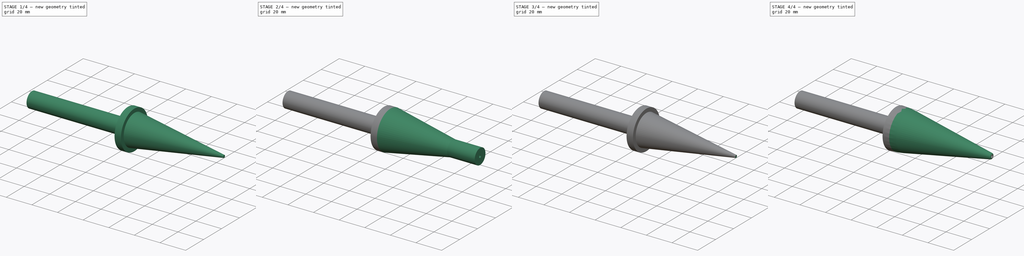
[diagram: build sequence overview — one tinted view per stage of 4, left to right]
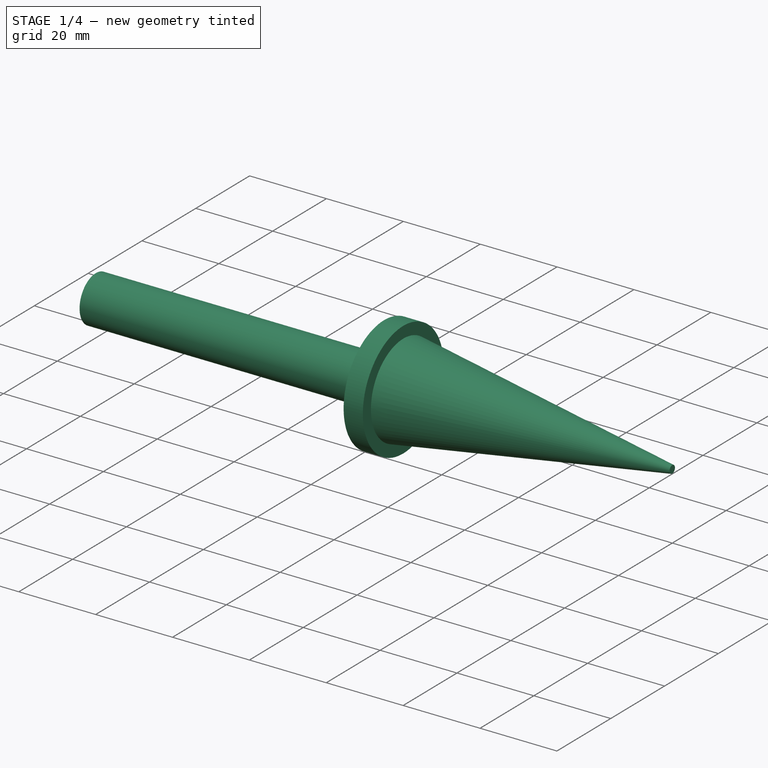
[diagram: stage 1 of 4 — iso view after this stage's code; geometry added in this stage tinted green]
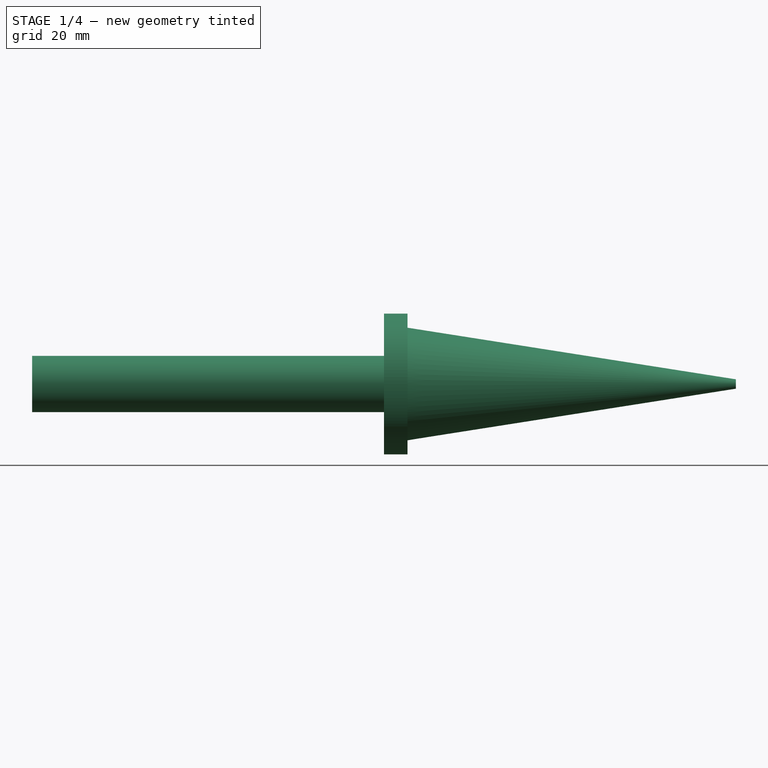
[diagram: stage 1 of 4 — front view after this stage's code; geometry added in this stage tinted green]
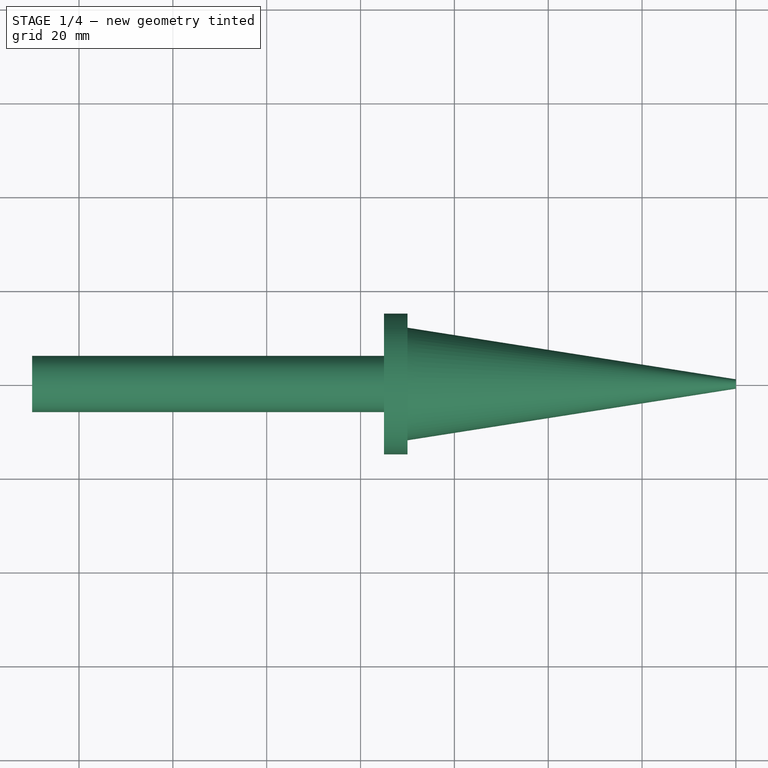
[diagram: stage 1 of 4 — top view after this stage's code; geometry added in this stage tinted green]
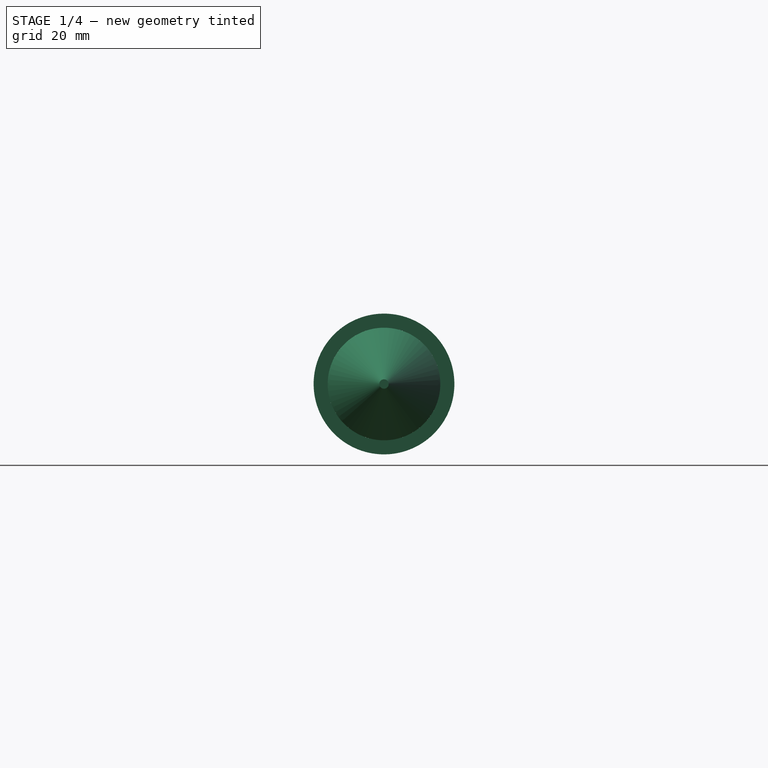
[diagram: stage 1 of 4 — right view after this stage's code; geometry added in this stage tinted green]
FCSTD DOCUMENT  (FreeCAD 1.0R39109 (Git))
Label: Isk_Inlet
License: All rights reserved
LicenseURL: https://en.wikipedia.org/wiki/All_rights_reserved
objects: Part::Cone×4, Part::FeaturePython×3, Part::Cut×2, Part::MultiFuse×2, Part::Fillet×2, Sketcher::SketchObject×1, Part::Extrusion×1, App::Part×1
note: 16 computed .brp shape members not serialized (recipe doc carries the construction recipe); baked Part::Feature solids carry a one-line shape summary decoded from their .brp

FEATURE [Part::Cone] Cone003  label="Cone_in001"
  Angle = 360
  AttacherType = Attacher::AttachEngine3D
  Height = 70
  Placement = pos=(0,0,0) rot=(0,1,0;4.71239rad)
  Radius1 = 1
  Radius2 = 12
FEATURE [Part::FeaturePython] Tube003  # WARN: FeaturePython — macro-defined, semantics opaque (R4)
  AttacherType = Attacher::AttachEngine3D
  Height = 80
  InnerRadius = 1
  OuterRadius = 6
  Placement = pos=(-70,0,0) rot=(0,1,0;4.71239rad)
FEATURE [Sketcher::SketchObject] Sketch
  ArcFitTolerance = 1e-06
  FullyConstrained = true
  MakeInternals = false
  Placement = pos=(0,0,0) rot=(0.57735,0.57735,0.57735;2.0944rad)
  sketch-geometry (18):
    g0: Circle CenterX=0 CenterY=0 CenterZ=0 NormalX=0 NormalY=0 NormalZ=1 AngleXU=0 Radius=15
    g1: LineSegment StartX=-1 StartY=11.9583 StartZ=0 EndX=-1 EndY=5.91608 EndZ=0
    g2: LineSegment StartX=1 StartY=11.9583 StartZ=0 EndX=1 EndY=5.91608 EndZ=0
    g3: LineSegment StartX=5.91608 StartY=1 StartZ=0 EndX=11.9583 EndY=1 EndZ=0
    g4: LineSegment StartX=-1 StartY=-5.91608 StartZ=0 EndX=-1 EndY=-11.9583 EndZ=0
    g5: LineSegment StartX=1 StartY=-5.91608 StartZ=0 EndX=1 EndY=-11.9583 EndZ=0
    g6: LineSegment StartX=-5.91608 StartY=1 StartZ=0 EndX=-11.9583 EndY=1 EndZ=0
    g7: LineSegment StartX=-5.91608 StartY=-1 StartZ=0 EndX=-11.9583 EndY=-1 EndZ=0
    g8: LineSegment StartX=5.91608 StartY=-1 StartZ=0 EndX=11.9583 EndY=-1 EndZ=0
    g9: ArcOfCircle CenterX=0 CenterY=0 CenterZ=0 NormalX=0 NormalY=0 NormalZ=1 AngleXU=0 Radius=6 StartAngle=1.73824 EndAngle=2.97414
    g10: ArcOfCircle CenterX=0 CenterY=0 CenterZ=0 NormalX=0 NormalY=0 NormalZ=1 AngleXU=0 Radius=6 StartAngle=0.167448 EndAngle=1.40335
    g11: ArcOfCircle CenterX=0 CenterY=0 CenterZ=0 NormalX=0 NormalY=0 NormalZ=1 AngleXU=0 Radius=6 StartAngle=4.87984 EndAngle=6.11574
    g12: ArcOfCircle CenterX=0 CenterY=0 CenterZ=0 NormalX=0 NormalY=0 NormalZ=1 AngleXU=0 Radius=6 StartAngle=3.30904 EndAngle=4.54494
    g13: ArcOfCircle CenterX=0 CenterY=0 CenterZ=0 NormalX=0 NormalY=0 NormalZ=1 AngleXU=0 Radius=12 StartAngle=1.65423 EndAngle=3.05816
    g14: ArcOfCircle CenterX=0 CenterY=0 CenterZ=0 NormalX=0 NormalY=0 NormalZ=1 AngleXU=0 Radius=12 StartAngle=0.0834301 EndAngle=1.48737
    g15: ArcOfCircle CenterX=0 CenterY=0 CenterZ=0 NormalX=0 NormalY=0 NormalZ=1 AngleXU=0 Radius=12 StartAngle=4.79582 EndAngle=6.19976
    g16: ArcOfCircle CenterX=0 CenterY=0 CenterZ=0 NormalX=0 NormalY=0 NormalZ=1 AngleXU=0 Radius=12 StartAngle=3.22502 EndAngle=4.62896
    g17: Circle CenterX=0 CenterY=0 CenterZ=0 NormalX=0 NormalY=0 NormalZ=1 AngleXU=0 Radius=5
  constraints (60):
    c: Coincident(g0,g-1)
    c: Diameter(g0) = 30
    c: Vertical(g1)
    c: Vertical(g2)
    c: Distance(g-2,g1) = 1
    c: Distance(g-2,g2) = 1
    c: Horizontal(g3)
    c: Vertical(g4)
    c: Vertical(g5)
    c: Horizontal(g6)
    c: Horizontal(g7)
    c: Distance(g-1,g3) = 1
    c: Horizontal(g8)
    c: Distance(g-1,g8) = 1
    c: Distance(g-2,g5) = 1
    c: Distance(g-2,g4) = 1
    c: Distance(g-1,g7) = 1
    c: Distance(g-1,g6) = 1
    c: Coincident(g9,g0)
    c: Coincident(g9,g6)
    c: Coincident(g9,g1)
    c: Coincident(g10,g0)
    c: Coincident(g10,g2)
    c: Coincident(g10,g3)
    c: Coincident(g11,g0)
    c: Coincident(g11,g8)
    c: Coincident(g11,g5)
    c: Coincident(g12,g0)
    c: Coincident(g12,g4)
    c: Coincident(g12,g7)
    c: Coincident(g13,g0)
    c: Coincident(g13,g6)
    c: Coincident(g13,g1)
    c: Coincident(g14,g0)
    c: Coincident(g14,g2)
    c: Coincident(g14,g3)
    c: Coincident(g15,g0)
    c: Coincident(g15,g8)
    c: Coincident(g15,g5)
    c: Coincident(g16,g0)
    c: Coincident(g16,g4)
    c: Coincident(g16,g7)
    c: Block(g1)
    c: Block(g2)
    c: Block(g3)
    c: Block(g4)
    c: Block(g5)
    c: Block(g6)
    c: Block(g7)
    c: Block(g8)
    c: Block(g9)
    c: Block(g10)
    c: Block(g11)
    c: Block(g12)
    c: Block(g13)
    c: Block(g14)
    c: Block(g15)
    c: Block(g16)
    c: Coincident(g17,g0)
    c: Diameter(g17) = 10
FEATURE [Part::Extrusion] Extrude  label="Base"
  Base = -> Sketch
  Dir = (1,0,0)
  DirMode = 2
  FaceMakerClass = Part::FaceMakerBullseye
  FaceMakerMode = 3
  LengthFwd = 5
  LengthRev = 0
  Placement = pos=(-75,0,0) rot=(0,0,1;0rad)
  Solid = true
  Symmetric = false
FEATURE [Part::Fillet] Fillet  label="Base_fillet"
  Base = -> Extrude
  EdgeLinks = -> Extrude [Edge4,Edge5,Edge8,Edge11,Edge16,Edge17,Edge20,Edge23,Edge28,Edge29,Edge32,Edge35,Edge40,Edge41,Edge44,Edge47]
  Edges = 16 edges r=1.5: [Edge4,Edge5,Edge8,Edge11,Edge16,Edge17,Edge20,Edge23,Edge28,Edge29,Edge32,Edge35,Edge40,Edge41,Edge44,Edge47]
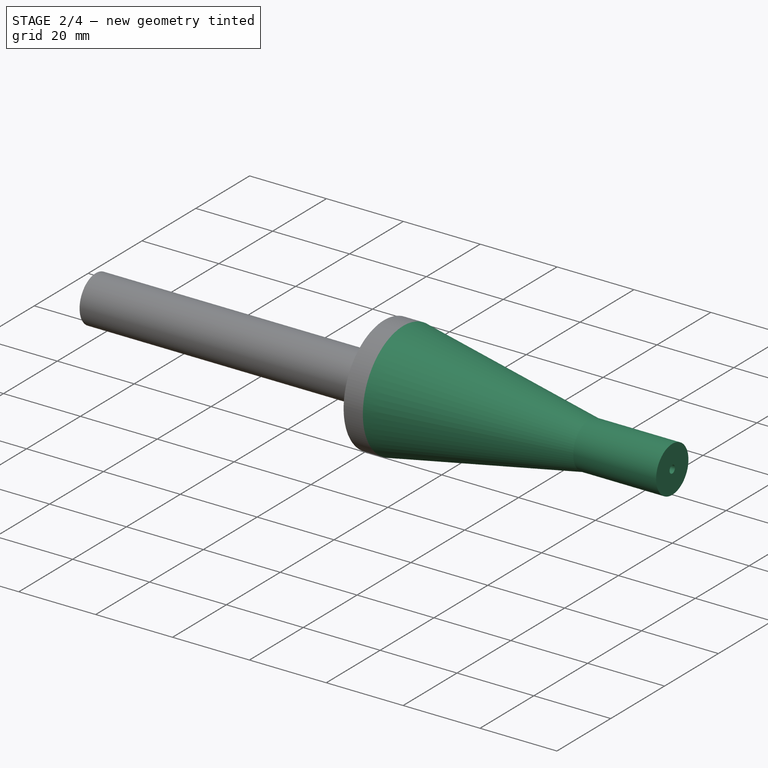
[diagram: stage 2 of 4 — iso view after this stage's code; geometry added in this stage tinted green]
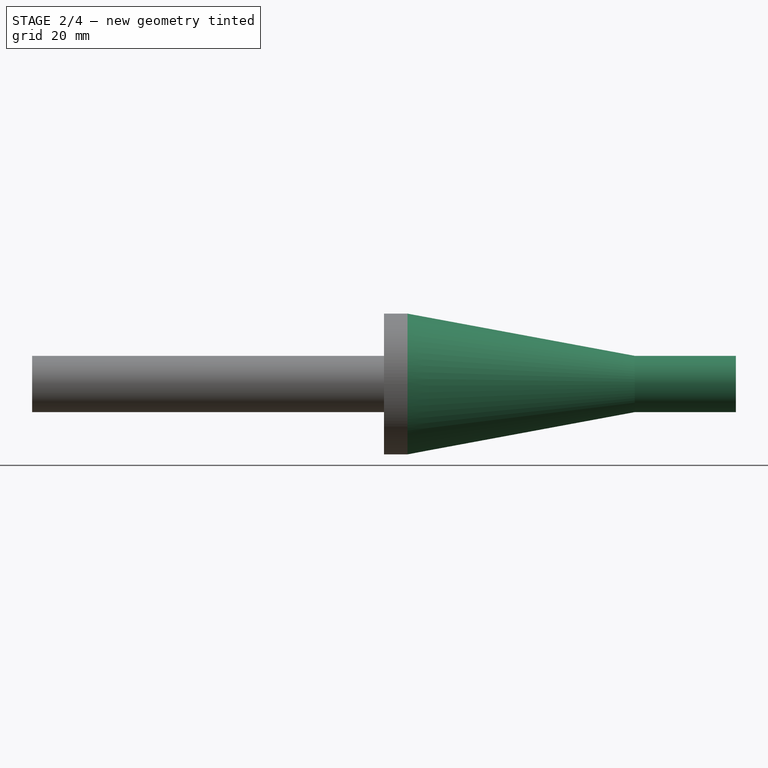
[diagram: stage 2 of 4 — front view after this stage's code; geometry added in this stage tinted green]
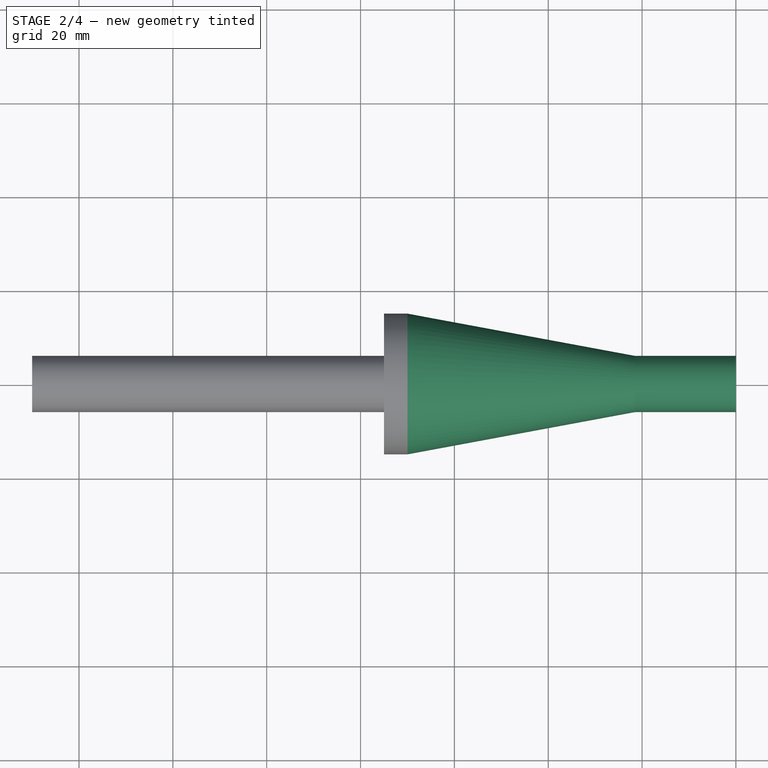
[diagram: stage 2 of 4 — top view after this stage's code; geometry added in this stage tinted green]
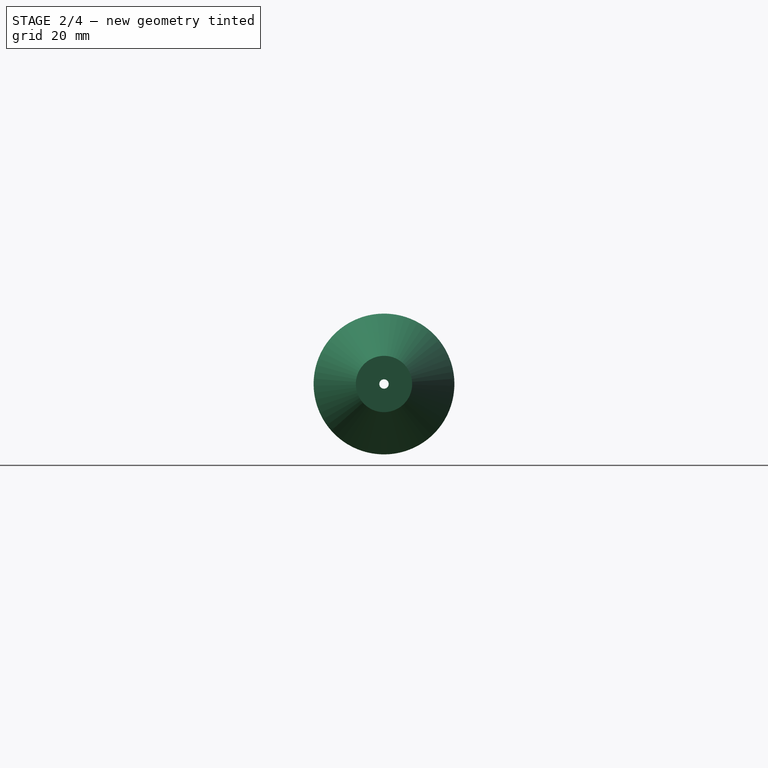
[diagram: stage 2 of 4 — right view after this stage's code; geometry added in this stage tinted green]
FEATURE [Part::FeaturePython] Tube002  # WARN: FeaturePython — macro-defined, semantics opaque (R4)
  AttacherType = Attacher::AttachEngine3D
  Height = 70
  InnerRadius = 1
  OuterRadius = 6
  Placement = pos=(0,0,0) rot=(0,1,0;4.71239rad)
FEATURE [Part::Cone] Cone002  label="Cone_out001"
  Angle = 360
  AttacherType = Attacher::AttachEngine3D
  Height = 70
  Placement = pos=(0,0,0) rot=(0,1,0;4.71239rad)
  Radius1 = 2
  Radius2 = 15
FEATURE [Part::Cut] Cut001  label="ConeTop001"
  Base = -> Cone002
  Refine = true
  Tool = -> Cone003
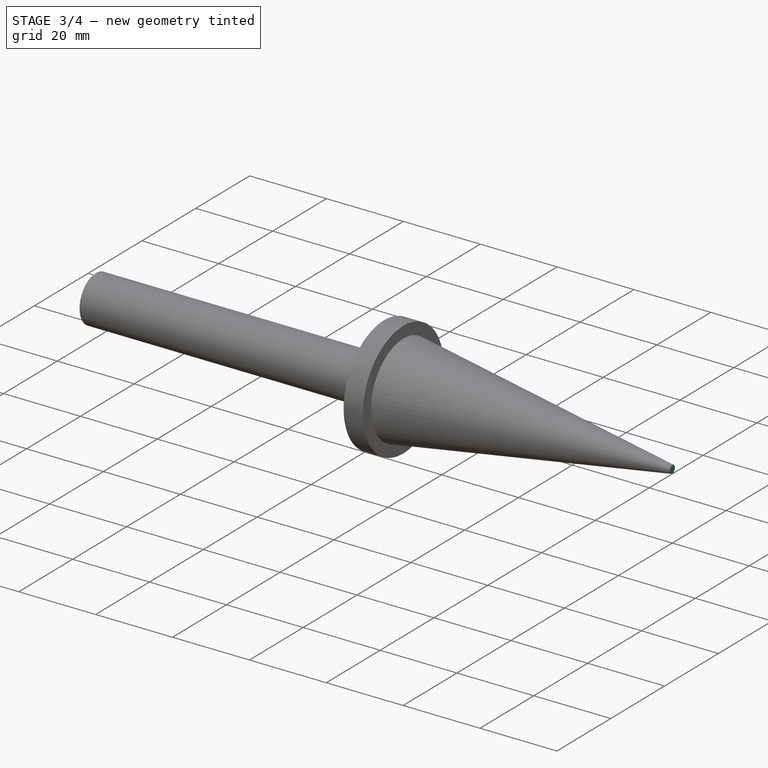
[diagram: stage 3 of 4 — iso view after this stage's code; geometry added in this stage tinted green]
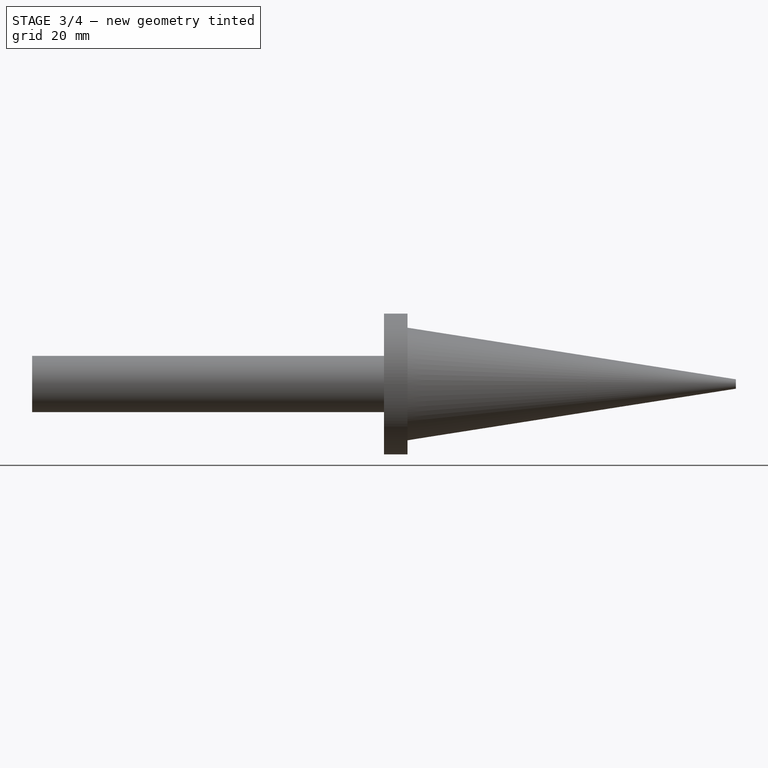
[diagram: stage 3 of 4 — front view after this stage's code; geometry added in this stage tinted green]
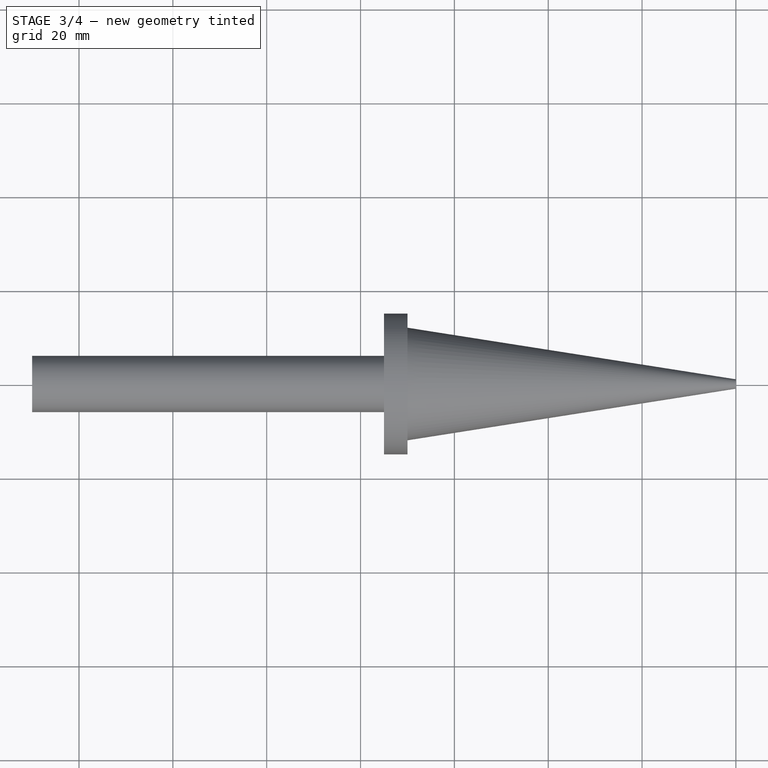
[diagram: stage 3 of 4 — top view after this stage's code; geometry added in this stage tinted green]
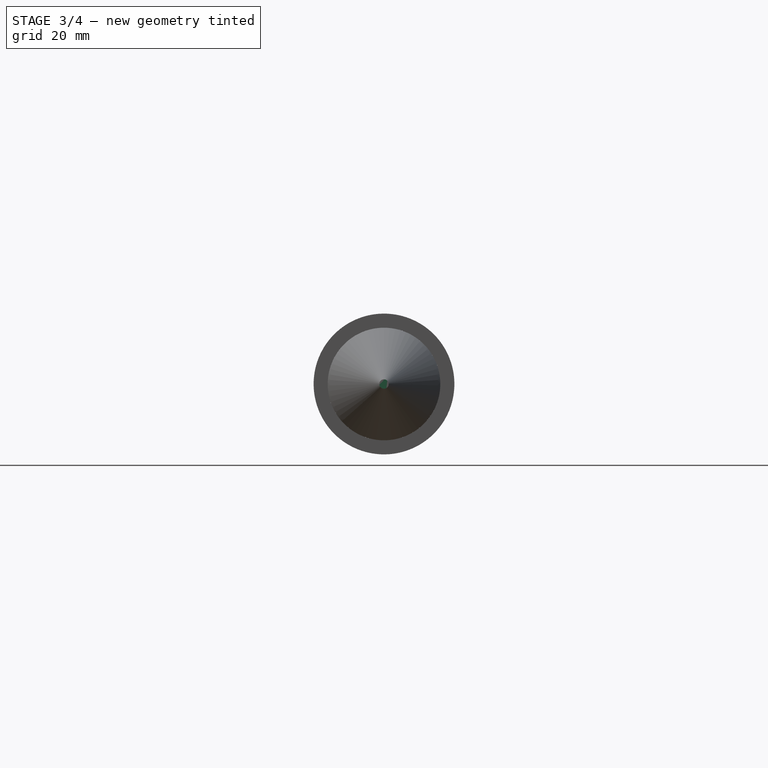
[diagram: stage 3 of 4 — right view after this stage's code; geometry added in this stage tinted green]
FEATURE [Part::Cone] Cone001  label="Cone_in"
  Angle = 360
  AttacherType = Attacher::AttachEngine3D
  Height = 70
  Placement = pos=(0,0,0) rot=(0,1,0;4.71239rad)
  Radius1 = 1
  Radius2 = 12
FEATURE [Part::FeaturePython] Cutout  # WARN: FeaturePython — macro-defined, semantics opaque (R4)
  Base = -> Tube002
  Refine = true
  Tolerance = 0
  Tool = -> Cut001
FEATURE [Part::MultiFuse] Fusion  label="Tube"
  Refine = true
  Shapes = -> [Cutout,Tube003]
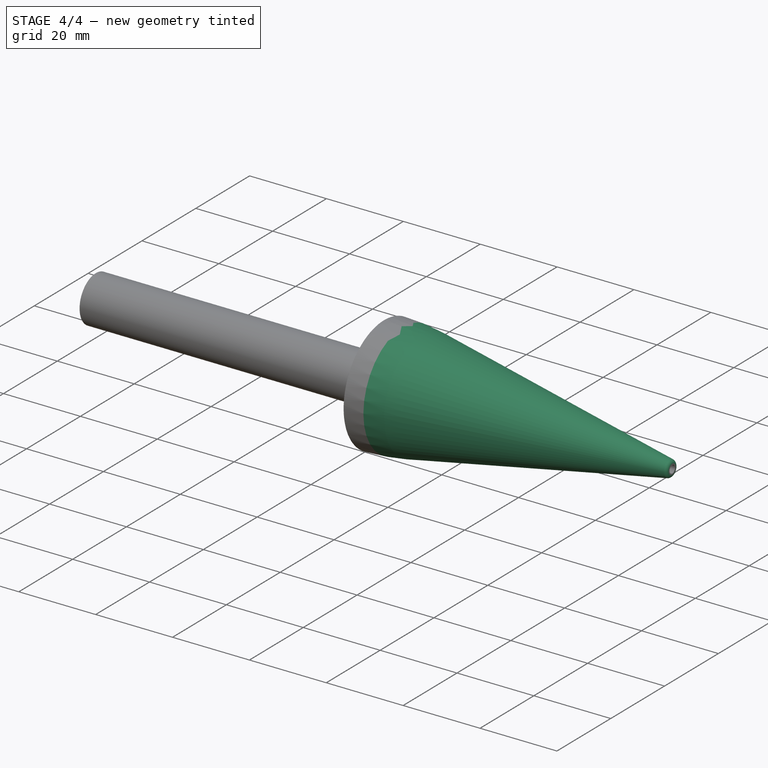
[diagram: stage 4 of 4 — iso view after this stage's code; geometry added in this stage tinted green]
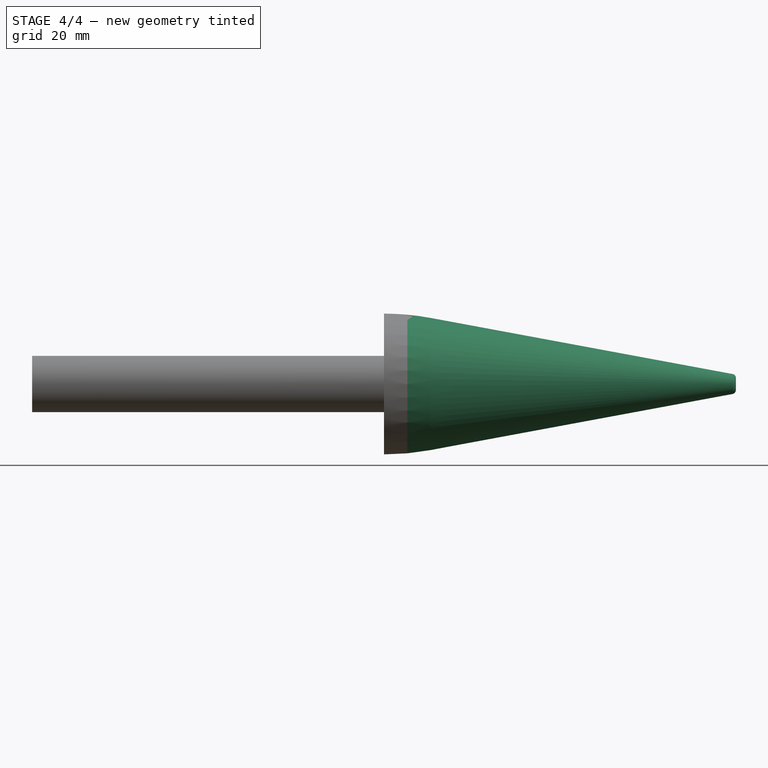
[diagram: stage 4 of 4 — front view after this stage's code; geometry added in this stage tinted green]
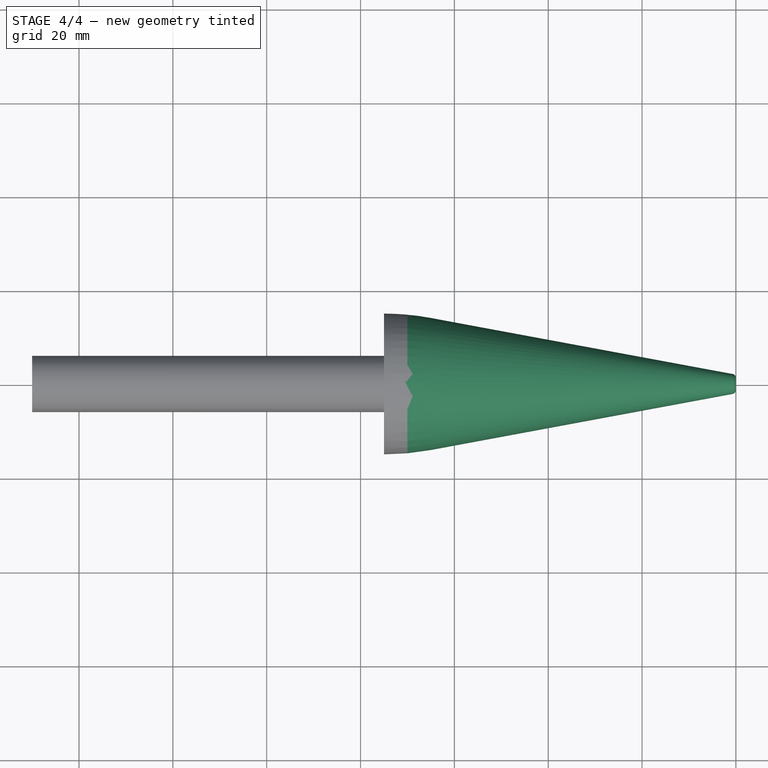
[diagram: stage 4 of 4 — top view after this stage's code; geometry added in this stage tinted green]
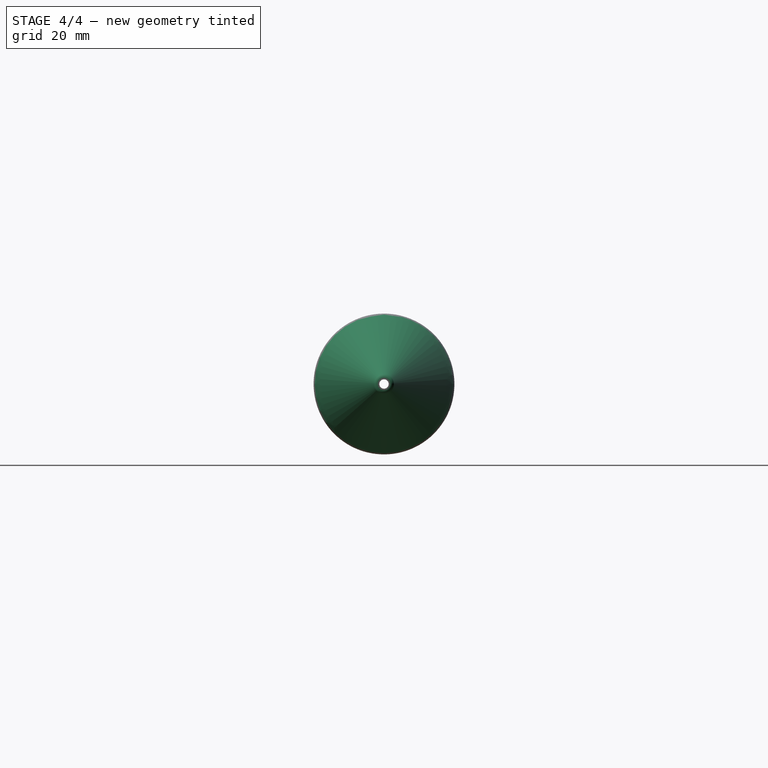
[diagram: stage 4 of 4 — right view after this stage's code; geometry added in this stage tinted green]
FEATURE [Part::Cone] Cone  label="Cone_out"
  Angle = 360
  AttacherType = Attacher::AttachEngine3D
  Height = 70
  Placement = pos=(0,0,0) rot=(0,1,0;4.71239rad)
  Radius1 = 2
  Radius2 = 15
FEATURE [Part::Cut] Cut  label="ConeTop"
  Base = -> Cone
  Refine = true
  Tool = -> Cone001
FEATURE [Part::MultiFuse] Fusion001
  Refine = true
  Shapes = -> [Cut,Fusion,Fillet]
FEATURE [Part::Fillet] Fillet001  label="ISOKIN"
  Base = -> Fusion001
  EdgeLinks = -> Fusion001 [Edge2,Edge4]
  Edges = 2 edges: [Edge2 r=0.9,Edge4 r=54.2]
FEATURE [App::Part] Part  label="IsoKinInlet"
  Group = -> [Cone002,Cone003,Extrude,Tube003,Cone,Cone001,Sketch,Cut001,Cut,Fillet,Fusion,Tube002,Cutout,Fusion001,Fillet001]
  Origin = -> Origin
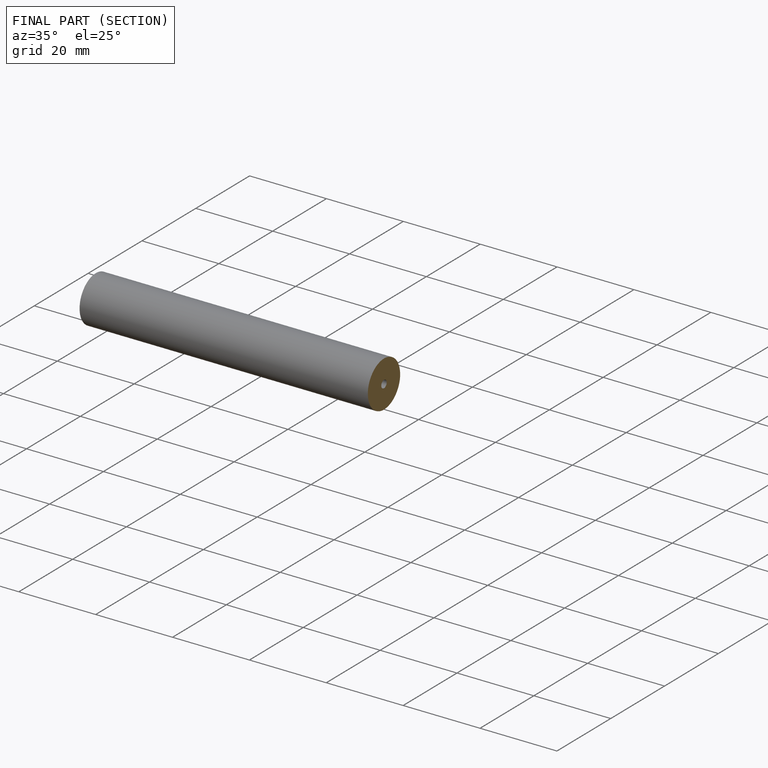
[diagram: finished part — half-section view (interior)]
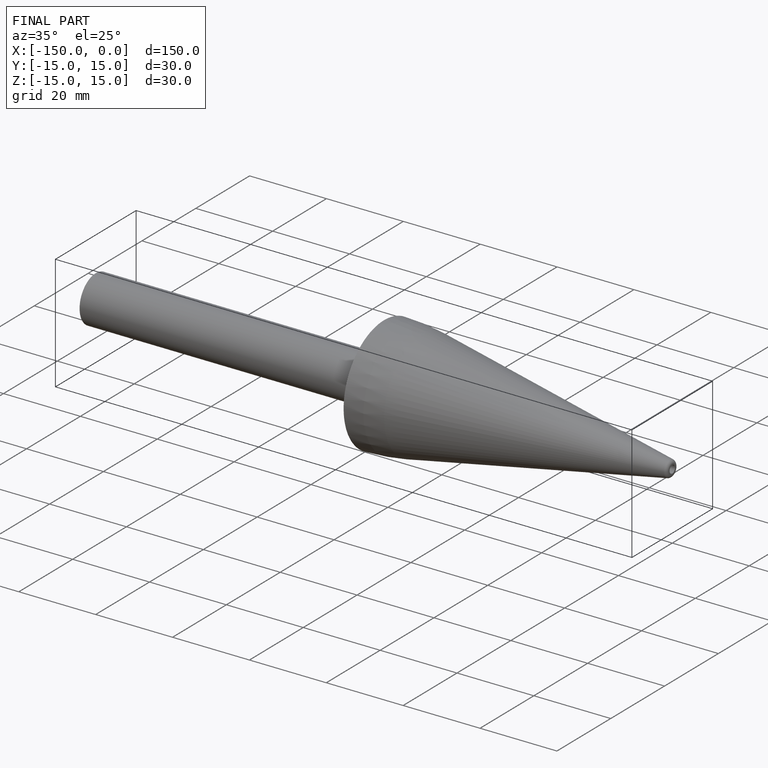
[diagram: finished part — iso view with bounding-box wireframe]
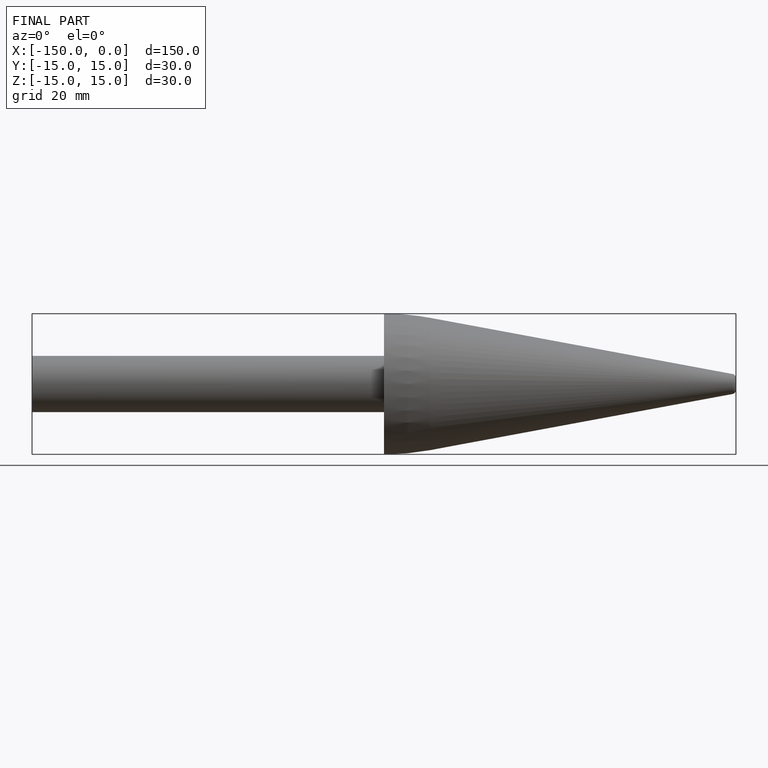
[diagram: finished part — front view with bounding-box wireframe]
